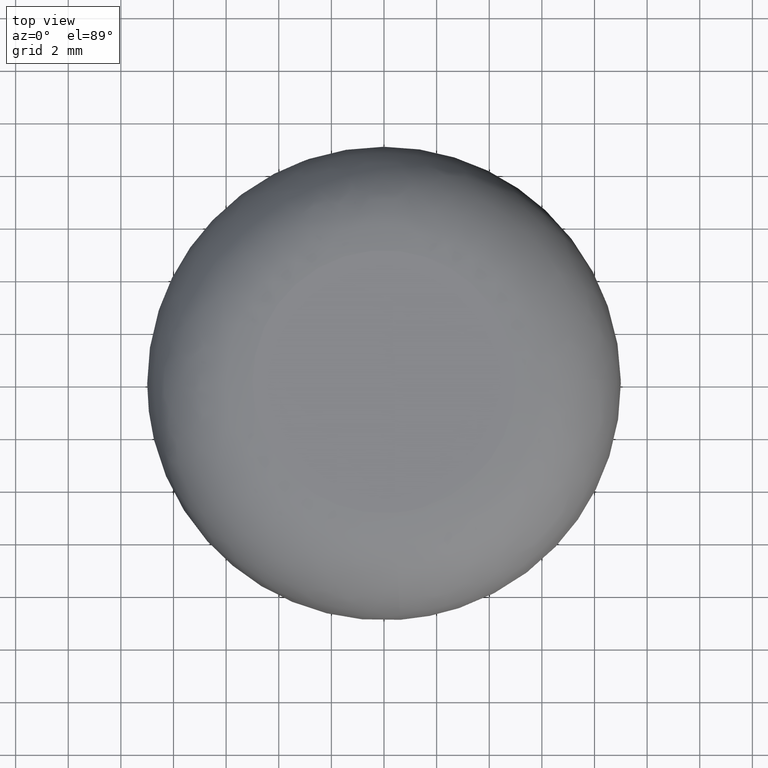
[diagram: clean part render]
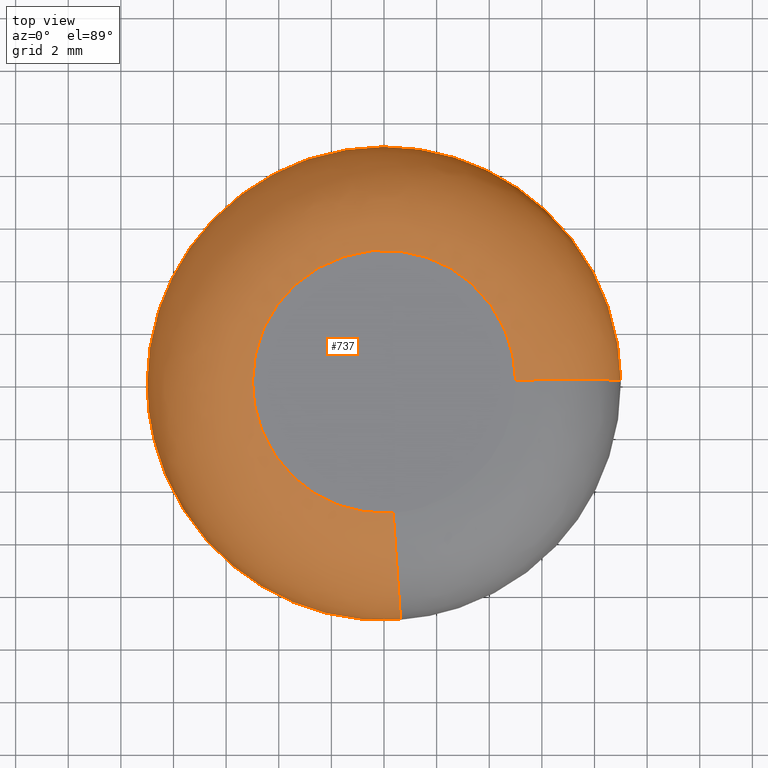
[diagram: same view with one face highlighted and labeled with its STEP entity id]
A machine part, top view. The second image highlights one B-rep face of the part: STEP entity #737.
In plain terms, the highlighted face is a freeform B-spline surface patch.
Its self-contained STEP definition (entity closure, byte-faithful):
#602=CARTESIAN_POINT('',(0.329269772991595,-4.710356625353333,11.190317431951955));
#603=CARTESIAN_POINT('',(0.194461520167422,-4.719780175698945,11.190317431951954));
#604=CARTESIAN_POINT('',(0.059334969659468,-4.721478315399898,11.190317431951957));
#605=CARTESIAN_POINT('',(-4.662143345740431,-4.780813285059364,11.190317431951954));
#606=CARTESIAN_POINT('',(-4.721478315399898,-0.059334969659468,11.190317431951957));
#607=CARTESIAN_POINT('',(-4.780813285059366,4.662143345740429,11.190317431951954));
#608=CARTESIAN_POINT('',(-0.059334969659468,4.721478315399898,11.190317431951957));
#609=CARTESIAN_POINT('',(4.662143345740429,4.780813285059366,11.190317431951954));
#610=CARTESIAN_POINT('',(4.721478315399898,0.059334969659468,11.190317431951957));
#611=CARTESIAN_POINT('',(0.649226447854691,-9.287485068011433,11.510149091306483));
#612=CARTESIAN_POINT('',(0.383422871876979,-9.306065632092599,11.510149091306477));
#613=CARTESIAN_POINT('',(0.116991703294202,-9.309413881146851,11.510149091306481));
#614=CARTESIAN_POINT('',(-9.192422177852645,-9.426405584441053,11.510149091306486));
#615=CARTESIAN_POINT('',(-9.309413881146851,-0.116991703294203,11.510149091306481));
#616=CARTESIAN_POINT('',(-9.426405584441055,9.192422177852645,11.510149091306486));
#617=CARTESIAN_POINT('',(-0.116991703294203,9.309413881146851,11.510149091306481));
#618=CARTESIAN_POINT('',(9.192422177852645,9.426405584441055,11.510149091306486));
#619=CARTESIAN_POINT('',(9.309413881146851,0.116991703294204,11.510149091306481));
#620=CARTESIAN_POINT('',(0.626923572802655,-8.968432109365070,6.921851243950875));
#621=CARTESIAN_POINT('',(0.370251146615597,-8.986374375360155,6.921851243950872));
#622=CARTESIAN_POINT('',(0.112972687511161,-8.989607602020376,6.921851243950871));
#623=CARTESIAN_POINT('',(-8.876634914509213,-9.102580289531536,6.921851243950874));
#624=CARTESIAN_POINT('',(-8.989607602020374,-0.112972687511162,6.921851243950871));
#625=CARTESIAN_POINT('',(-9.102580289531538,8.876634914509213,6.921851243950874));
#626=CARTESIAN_POINT('',(-0.112972687511162,8.989607602020374,6.921851243950871));
#627=CARTESIAN_POINT('',(8.876634914509213,9.102580289531540,6.921851243950874));
#628=CARTESIAN_POINT('',(8.989607602020374,0.112972687511163,6.921851243950871));
#636=(BOUNDED_SURFACE()B_SPLINE_SURFACE(2,2,((#602,#611,#620),(#603,#612,#621),(#604,#613,#622),(#605,#614,#623),(#606,#615,#624),(#607,#616,#625),(#608,#617,#626),(#609,#618,#627),(#610,#619,#628)),.UNSPECIFIED.,.F.,.F.,.U.)B_SPLINE_SURFACE_WITH_KNOTS((3,2,2,2,3),(3,3),(0.0,0.595825257945763,15.491470912184530,30.387116566423298,45.282762220662072),(0.0,7.289496554607219),.UNSPECIFIED.)GEOMETRIC_REPRESENTATION_ITEM()RATIONAL_B_SPLINE_SURFACE(((0.895729781274672,0.587800184012205,0.895729769919120),(0.905606539410674,0.594281558608821,0.905606527929911),(0.916342145189957,0.601326530412220,0.916342133573094),(0.647951744750847,0.425202067361860,0.647951736536484),(0.916342145189957,0.601326530412220,0.916342133573094),(0.647951744750847,0.425202067361860,0.647951736536484),(0.916342145189957,0.601326530412220,0.916342133573094),(0.647951744750847,0.425202067361860,0.647951736536484),(0.916342145189957,0.601326530412220,0.916342133573094)))REPRESENTATION_ITEM('')SURFACE());
#637=CARTESIAN_POINT('',(0.348666257935958,-4.987828369300749,11.199999999999999));
#638=VERTEX_POINT('',#637);
#639=CARTESIAN_POINT('',(-5.0,0.0,11.199999999999999));
#640=VERTEX_POINT('',#639);
#641=CARTESIAN_POINT('',(0.348666257935958,-4.987828369300749,11.199999999999996));
#642=CARTESIAN_POINT('',(0.174545579425353,-4.999999999999999,11.199999999999998));
#643=CARTESIAN_POINT('',(0.0,-5.0,11.199999999999999));
#644=CARTESIAN_POINT('',(-5.000000000000001,-5.000000000000001,11.199999999999999));
#645=CARTESIAN_POINT('',(-5.0,0.0,11.199999999999999));
#653=(BOUNDED_CURVE()B_SPLINE_CURVE(2,(#641,#642,#643,#644,#645),.UNSPECIFIED.,.F.,.U.)B_SPLINE_CURVE_WITH_KNOTS((3,2,3),(0.737833686531576,0.750000000000000,1.0),.UNSPECIFIED.)CURVE()GEOMETRIC_REPRESENTATION_ITEM()RATIONAL_B_SPLINE_CURVE((0.972879876379540,0.985746277148559,1.0,0.707106781186548,1.0))REPRESENTATION_ITEM(''));
#654=EDGE_CURVE('',#638,#640,#653,.T.);
#655=ORIENTED_EDGE('',*,*,#654,.T.);
#656=CARTESIAN_POINT('',(4.999605221082165,0.062830199452536,11.199999999999999));
#657=VERTEX_POINT('',#656);
#658=CARTESIAN_POINT('',(-5.0,0.0,11.199999999999999));
#659=CARTESIAN_POINT('',(-5.000000000000001,5.000000000000001,11.199999999999999));
#660=CARTESIAN_POINT('',(0.0,5.0,11.199999999999999));
#661=CARTESIAN_POINT('',(4.937559649467487,5.000000000000001,11.200000000000001));
#662=CARTESIAN_POINT('',(4.999605221082165,0.062830199452536,11.199999999999999));
#670=(BOUNDED_CURVE()B_SPLINE_CURVE(2,(#658,#659,#660,#661,#662),.UNSPECIFIED.,.F.,.U.)B_SPLINE_CURVE_WITH_KNOTS((3,2,3),(0.0,0.250000000000000,0.497784295919268),.UNSPECIFIED.)CURVE()GEOMETRIC_REPRESENTATION_ITEM()RATIONAL_B_SPLINE_CURVE((1.0,0.707106781186548,1.0,0.709702639987123,0.994854295638349))REPRESENTATION_ITEM(''));
#671=EDGE_CURVE('',#640,#657,#670,.T.);
#672=ORIENTED_EDGE('',*,*,#671,.T.);
#673=CARTESIAN_POINT('',(8.999289397834282,0.113094358954944,7.200000000009858));
#674=VERTEX_POINT('',#673);
#675=CARTESIAN_POINT('',(4.999605221082164,0.062830199452536,11.200000000000001));
#676=CARTESIAN_POINT('',(8.999289397814627,0.113094358949919,11.199999999872940));
#677=CARTESIAN_POINT('',(8.999289397834282,0.113094358954943,7.200000000009858));
#685=(BOUNDED_CURVE()B_SPLINE_CURVE(2,(#675,#676,#677),.UNSPECIFIED.,.F.,.U.)B_SPLINE_CURVE_WITH_KNOTS((3,3),(-1.734750791625395,-0.265249208346720),.UNSPECIFIED.)CURVE()GEOMETRIC_REPRESENTATION_ITEM()RATIONAL_B_SPLINE_CURVE((0.889029723564745,0.628638946224060,0.889029723574627))REPRESENTATION_ITEM(''));
#686=EDGE_CURVE('',#657,#674,#685,.T.);
#687=ORIENTED_EDGE('',*,*,#686,.T.);
#688=CARTESIAN_POINT('',(-9.0,0.0,7.200000000000000));
#689=VERTEX_POINT('',#688);
#690=CARTESIAN_POINT('',(-9.0,0.0,7.200000000000000));
#691=CARTESIAN_POINT('',(-9.0,9.0,7.200000000000000));
#692=CARTESIAN_POINT('',(0.0,9.0,7.200000000000000));
#693=CARTESIAN_POINT('',(8.887607369156402,9.0,7.200000000000000));
#694=CARTESIAN_POINT('',(8.999289397834282,0.113094358954944,7.200000000009858));
#702=(BOUNDED_CURVE()B_SPLINE_CURVE(2,(#690,#691,#692,#693,#694),.UNSPECIFIED.,.F.,.U.)B_SPLINE_CURVE_WITH_KNOTS((3,2,3),(0.0,0.250000000000000,0.497784295921542),.UNSPECIFIED.)CURVE()GEOMETRIC_REPRESENTATION_ITEM()RATIONAL_B_SPLINE_CURVE((1.0,0.707106781186547,1.0,0.709702639984458,0.994854295643583))REPRESENTATION_ITEM(''));
#703=EDGE_CURVE('',#689,#674,#702,.T.);
#704=ORIENTED_EDGE('',*,*,#703,.F.);
#705=CARTESIAN_POINT('',(0.627599264179876,-8.978091064563827,7.200000000009817));
#706=VERTEX_POINT('',#705);
#707=CARTESIAN_POINT('',(0.627599264179876,-8.978091064563827,7.200000000009817));
#708=CARTESIAN_POINT('',(0.314182042873309,-9.0,7.200000000000001));
#709=CARTESIAN_POINT('',(0.0,-9.0,7.200000000000000));
#710=CARTESIAN_POINT('',(-9.0,-9.0,7.200000000000000));
#711=CARTESIAN_POINT('',(-9.0,0.0,7.200000000000000));
#719=(BOUNDED_CURVE()B_SPLINE_CURVE(2,(#707,#708,#709,#710,#711),.UNSPECIFIED.,.F.,.U.)B_SPLINE_CURVE_WITH_KNOTS((3,2,3),(0.737833686535100,0.750000000000000,1.0),.UNSPECIFIED.)CURVE()GEOMETRIC_REPRESENTATION_ITEM()RATIONAL_B_SPLINE_CURVE((0.972879876386994,0.985746277152688,1.0,0.707106781186547,1.0))REPRESENTATION_ITEM(''));
#720=EDGE_CURVE('',#706,#689,#719,.T.);
#721=ORIENTED_EDGE('',*,*,#720,.F.);
#722=CARTESIAN_POINT('',(0.348666257935958,-4.987828369300749,11.199999999999998));
#723=CARTESIAN_POINT('',(0.627599264177604,-8.978091064544307,11.199999999795113));
#724=CARTESIAN_POINT('',(0.627599264179876,-8.978091064563827,7.200000000009817));
#732=(BOUNDED_CURVE()B_SPLINE_CURVE(2,(#722,#723,#724),.UNSPECIFIED.,.F.,.U.)B_SPLINE_CURVE_WITH_KNOTS((3,3),(-1.734750791605177,-0.265249208346698),.UNSPECIFIED.)CURVE()GEOMETRIC_REPRESENTATION_ITEM()RATIONAL_B_SPLINE_CURVE((0.869031711856822,0.614498216543253,0.869031711873493))REPRESENTATION_ITEM(''));
#733=EDGE_CURVE('',#638,#706,#732,.T.);
#734=ORIENTED_EDGE('',*,*,#733,.F.);
#735=EDGE_LOOP('',(#655,#672,#687,#704,#721,#734));
#736=FACE_OUTER_BOUND('',#735,.T.);
#737=ADVANCED_FACE('',(#736),#636,.T.);